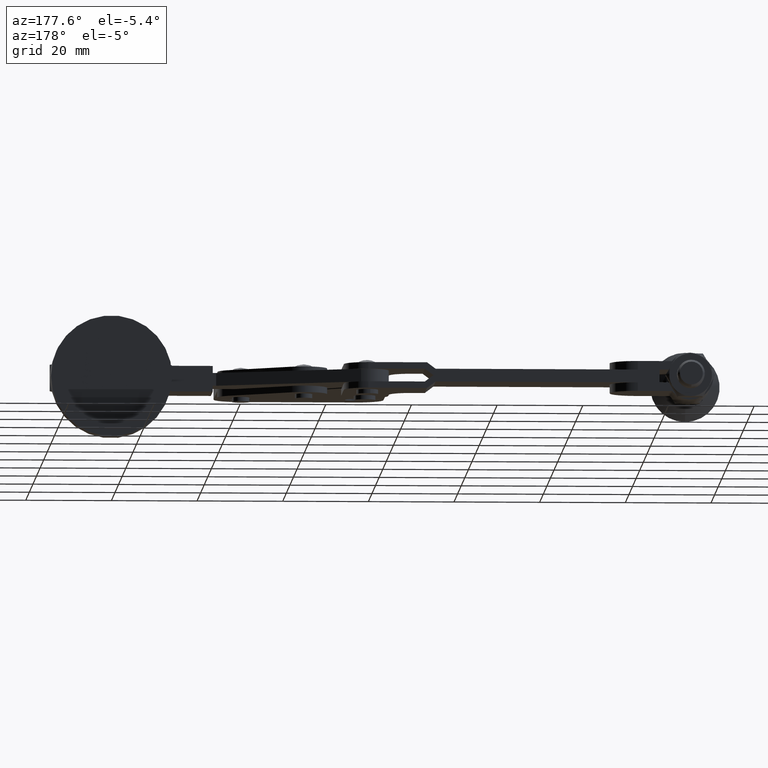
[diagram: clean part render]
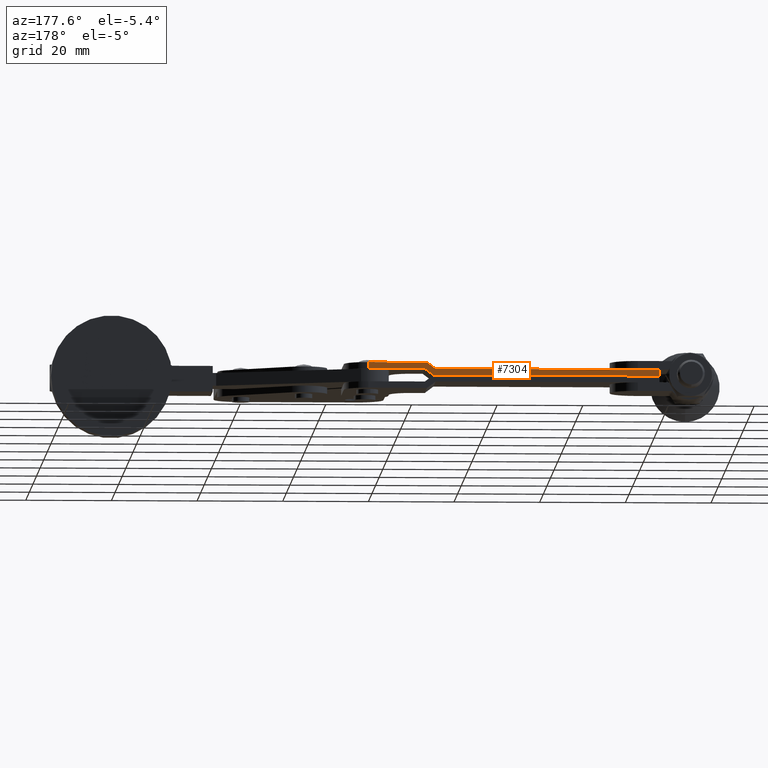
[diagram: same view with one face highlighted and labeled with its STEP entity id]
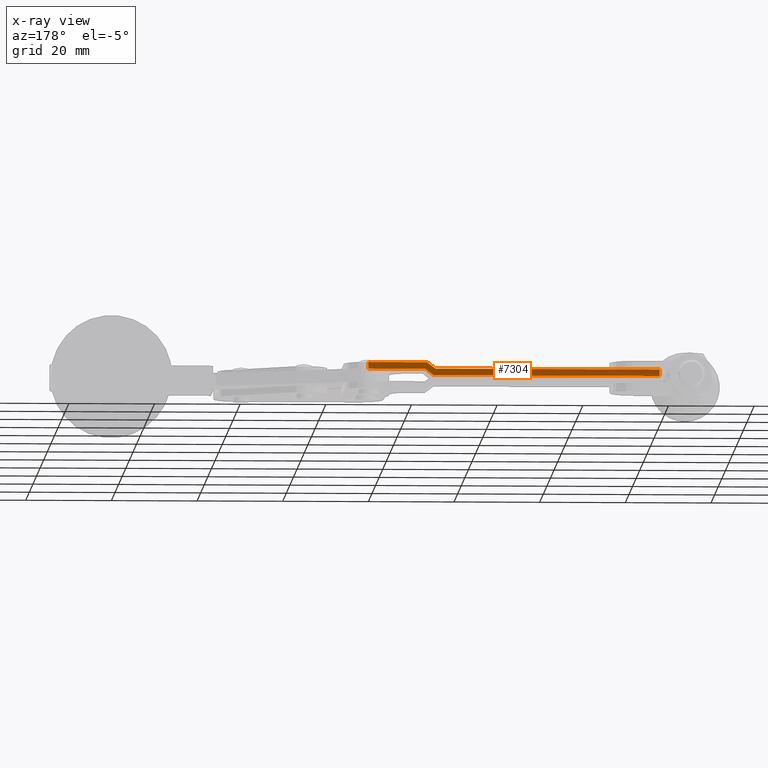
[diagram: x-ray of the same camera — body ghosted, the highlighted face saturated]
A machine part, auxiliary view. The second image highlights one B-rep face of the part: STEP entity #7304.
The next image is the same camera in x-ray: the body ghosted, the highlighted face saturated — about 0% of this face is hidden behind the body in this view.
In plain terms, the highlighted planar face has unit normal (-0, -1, -0).
Its self-contained STEP definition (entity closure, byte-faithful):
#106 = CARTESIAN_POINT ( 'NONE',  ( -102.2000026831019000, 38.09999114315611000, 1.499999999999947600 ) ) ;
#181 = DIRECTION ( 'NONE',  ( -0.7999999999999940500, -1.041981599911912200E-007, -0.5999999999999988700 ) ) ;
#613 = LINE ( 'NONE', #640, #1636 ) ;
#640 = CARTESIAN_POINT ( 'NONE',  ( -34.20000268310302300, 38.10000000000025000, -23.09999999999996600 ) ) ;
#698 = ORIENTED_EDGE ( 'NONE', *, *, #4161, .F. ) ;
#1033 = CARTESIAN_POINT ( 'NONE',  ( -47.40000268310216600, 38.09999828073009100, 1.499999999999999800 ) ) ;
#1079 = EDGE_CURVE ( 'NONE', #7054, #5851, #613, .T. ) ;
#1144 = LINE ( 'NONE', #3956, #7850 ) ;
#1296 = CARTESIAN_POINT ( 'NONE',  ( -34.20000268310302300, 38.09999999999970300, 1.499999999999998000 ) ) ;
#1306 = CARTESIAN_POINT ( 'NONE',  ( -28.70000268310234800, 38.10000071636205400, 2.999999999999997800 ) ) ;
#1352 = VECTOR ( 'NONE', #2815, 1000.000000000000200 ) ;
#1354 = DIRECTION ( 'NONE',  ( 0.8000000000000105900, 1.041981600050711800E-007, 0.5999999999999770000 ) ) ;
#1373 = VERTEX_POINT ( 'NONE', #106 ) ;
#1522 = CARTESIAN_POINT ( 'NONE',  ( -103.8770449366230500, 38.09999092472519100, 5.000000001028266400E-005 ) ) ;
#1636 = VECTOR ( 'NONE', #3980, 1000.000000000000000 ) ;
#1680 = ORIENTED_EDGE ( 'NONE', *, *, #2526, .T. ) ;
#2023 = CARTESIAN_POINT ( 'NONE',  ( -49.90000268310232200, 38.09999795511084400, 1.499999999999999800 ) ) ;
#2089 = LINE ( 'NONE', #2023, #5599 ) ;
#2162 = CARTESIAN_POINT ( 'NONE',  ( -28.70000268310234800, 38.10000071636205400, 1.499999999999997600 ) ) ;
#2186 = LINE ( 'NONE', #2424, #7377 ) ;
#2279 = FACE_OUTER_BOUND ( 'NONE', #6919, .T. ) ;
#2424 = CARTESIAN_POINT ( 'NONE',  ( -102.2000026831019000, 38.09999114315611000, 1.499999999999924500 ) ) ;
#2508 = CARTESIAN_POINT ( 'NONE',  ( -49.90000268310232200, 38.09999795511084400, 1.499999999999999800 ) ) ;
#2526 = EDGE_CURVE ( 'NONE', #3663, #3104, #3834, .T. ) ;
#2815 = DIRECTION ( 'NONE',  ( -0.9999999999999914500, -1.302476999871071900E-007, 7.245535455579138500E-017 ) ) ;
#2816 = VERTEX_POINT ( 'NONE', #6440 ) ;
#2819 = DIRECTION ( 'NONE',  ( -0.9999999999999914500, -1.302476999871072200E-007, 7.245535455579138500E-017 ) ) ;
#2874 = AXIS2_PLACEMENT_3D ( 'NONE', #2162, #6752, #2819 ) ;
#3074 = CARTESIAN_POINT ( 'NONE',  ( -47.40000268310216600, 38.09999828073009100, 1.499999999999999800 ) ) ;
#3104 = VERTEX_POINT ( 'NONE', #5017 ) ;
#3119 = LINE ( 'NONE', #1522, #6592 ) ;
#3663 = VERTEX_POINT ( 'NONE', #1033 ) ;
#3834 = LINE ( 'NONE', #3074, #8341 ) ;
#3878 = ORIENTED_EDGE ( 'NONE', *, *, #5359, .T. ) ;
#3956 = CARTESIAN_POINT ( 'NONE',  ( -47.90000268310222300, 38.09999821560621300, 2.999999999999998200 ) ) ;
#3966 = ORIENTED_EDGE ( 'NONE', *, *, #5868, .T. ) ;
#3980 = DIRECTION ( 'NONE',  ( 3.016982822449056600E-018, 1.573868415586469300E-020, 1.000000000000000000 ) ) ;
#4087 = VERTEX_POINT ( 'NONE', #7412 ) ;
#4111 = PLANE ( 'NONE',  #2874 ) ;
#4161 = EDGE_CURVE ( 'NONE', #4087, #3104, #3119, .T. ) ;
#4181 = ORIENTED_EDGE ( 'NONE', *, *, #5147, .F. ) ;
#4206 = DIRECTION ( 'NONE',  ( 0.9999999999999914500, 1.302476999871071900E-007, -3.239315877296252100E-016 ) ) ;
#4532 = CARTESIAN_POINT ( 'NONE',  ( -34.20000268310302300, 38.10000000000079000, 2.999999999999997800 ) ) ;
#4851 = VECTOR ( 'NONE', #7781, 1000.000000000000200 ) ;
#4853 = LINE ( 'NONE', #5536, #1352 ) ;
#5017 = CARTESIAN_POINT ( 'NONE',  ( -49.39993601643549000, 38.09999802024334800, 4.999999999341410400E-005 ) ) ;
#5147 = EDGE_CURVE ( 'NONE', #1373, #4087, #2186, .T. ) ;
#5334 = ORIENTED_EDGE ( 'NONE', *, *, #1079, .F. ) ;
#5359 = EDGE_CURVE ( 'NONE', #1373, #7599, #2089, .T. ) ;
#5536 = CARTESIAN_POINT ( 'NONE',  ( -28.70000268310234800, 38.10000071636205400, 1.499999999999997600 ) ) ;
#5599 = VECTOR ( 'NONE', #6568, 1000.000000000000200 ) ;
#5851 = VERTEX_POINT ( 'NONE', #4532 ) ;
#5868 = EDGE_CURVE ( 'NONE', #2816, #5851, #8226, .T. ) ;
#5924 = EDGE_CURVE ( 'NONE', #7599, #2816, #1144, .T. ) ;
#6440 = CARTESIAN_POINT ( 'NONE',  ( -47.90000268310222300, 38.09999821560621300, 2.999999999999998200 ) ) ;
#6568 = DIRECTION ( 'NONE',  ( 0.9999999999999914500, 1.302476999871071900E-007, 9.848999069919750600E-016 ) ) ;
#6592 = VECTOR ( 'NONE', #4206, 1000.000000000000200 ) ;
#6752 = DIRECTION ( 'NONE',  ( 1.302476999871072500E-007, -0.9999999999999915600, -9.695778398624890800E-017 ) ) ;
#6919 = EDGE_LOOP ( 'NONE', ( #1680, #698, #4181, #3878, #7473, #3966, #5334, #7817 ) ) ;
#7054 = VERTEX_POINT ( 'NONE', #1296 ) ;
#7304 = ADVANCED_FACE ( 'NONE', ( #2279 ), #4111, .F. ) ;
#7377 = VECTOR ( 'NONE', #7633, 1000.000000000000000 ) ;
#7412 = CARTESIAN_POINT ( 'NONE',  ( -102.2000026831019000, 38.09999114315611000, 5.000000000973941100E-005 ) ) ;
#7473 = ORIENTED_EDGE ( 'NONE', *, *, #5924, .T. ) ;
#7599 = VERTEX_POINT ( 'NONE', #2508 ) ;
#7633 = DIRECTION ( 'NONE',  ( 1.016392432864550100E-015, -1.560590842415305500E-020, -1.000000000000000000 ) ) ;
#7781 = DIRECTION ( 'NONE',  ( 0.9999999999999914500, 1.302476999871071900E-007, -2.728026403556222600E-017 ) ) ;
#7817 = ORIENTED_EDGE ( 'NONE', *, *, #7863, .T. ) ;
#7850 = VECTOR ( 'NONE', #1354, 999.9999999999998900 ) ;
#7863 = EDGE_CURVE ( 'NONE', #7054, #3663, #4853, .T. ) ;
#8226 = LINE ( 'NONE', #1306, #4851 ) ;
#8341 = VECTOR ( 'NONE', #181, 1000.000000000000100 ) ;